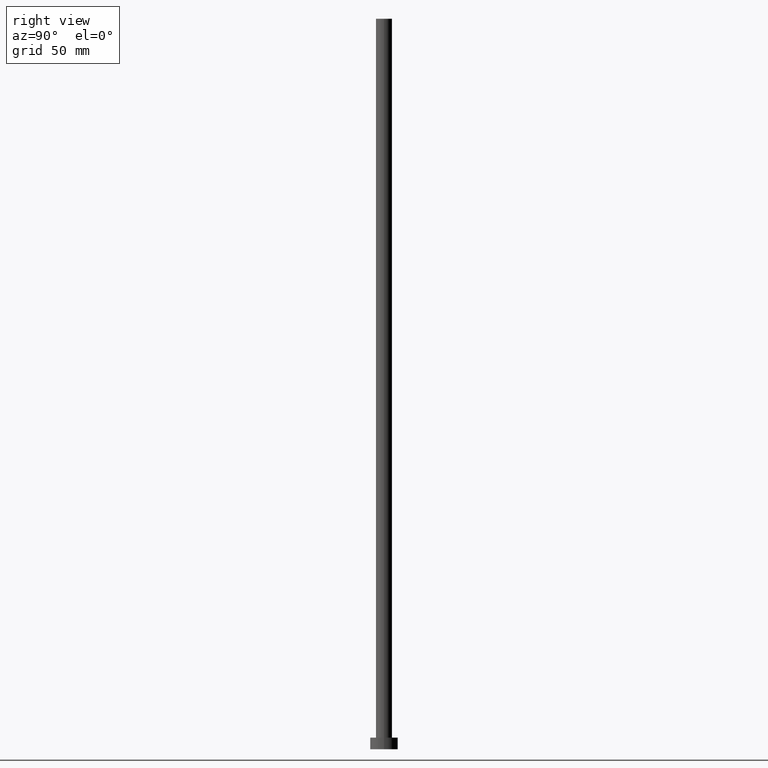
[diagram: clean part render]
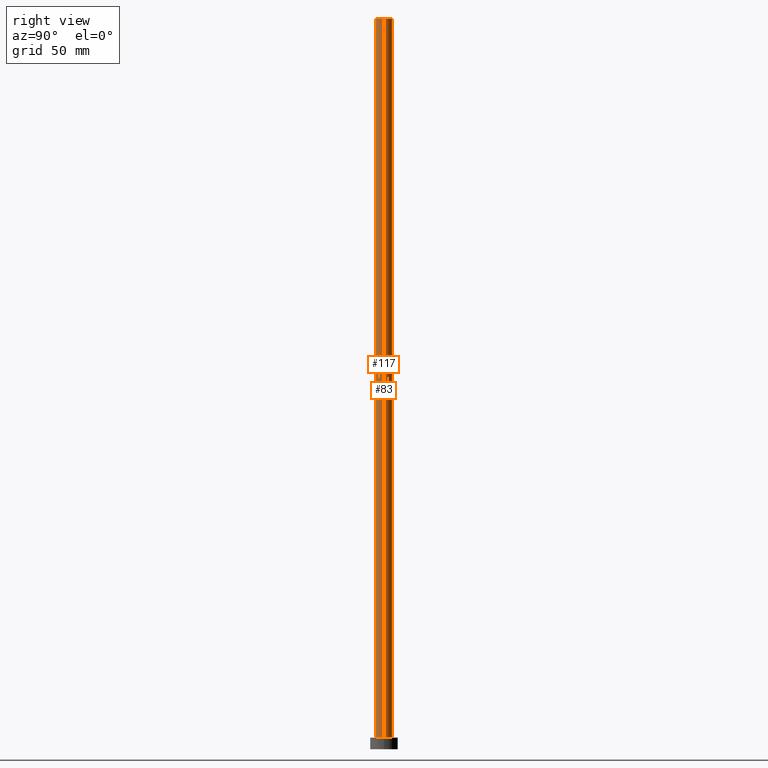
[diagram: same view with one multi-face feature highlighted, each face labeled with its STEP entity id]
A machine part, right view. The highlighted faces form ONE feature: a constant-radius fillet chain: 2 tangent blend faces with common blend radius 3.5 mm. The faces share edges in the B-rep.
Their STEP definitions:
[1] entity #83 (Cylinder):
#1 = EDGE_CURVE ( 'NONE', #251, #157, #139, .T. ) ;
#6 = CARTESIAN_POINT ( 'NONE',  ( 0.000000000000000000, 0.000000000000000000, 315.0000000000000000 ) ) ;
#14 = CARTESIAN_POINT ( 'NONE',  ( 3.500000000000000000, 4.286263797015736595E-16, 315.0000000000000000 ) ) ;
#15 = CARTESIAN_POINT ( 'NONE',  ( -3.500000000000000000, 0.000000000000000000, 315.0000000000000000 ) ) ;
#16 = EDGE_CURVE ( 'NONE', #173, #39, #75, .T. ) ;
#21 = FACE_OUTER_BOUND ( 'NONE', #55, .T. ) ;
#23 = CIRCLE ( 'NONE', #31, 3.500000000000000000 ) ;
#31 = AXIS2_PLACEMENT_3D ( 'NONE', #164, #221, #59 ) ;
#39 = VERTEX_POINT ( 'NONE', #118 ) ;
#40 = DIRECTION ( 'NONE',  ( -0.000000000000000000, -0.000000000000000000, -1.000000000000000000 ) ) ;
#55 = EDGE_LOOP ( 'NONE', ( #76, #250, #191, #140 ) ) ;
#59 = DIRECTION ( 'NONE',  ( 1.000000000000000000, 0.000000000000000000, 0.000000000000000000 ) ) ;
#68 = VECTOR ( 'NONE', #181, 1000.000000000000000 ) ;
#75 = LINE ( 'NONE', #14, #68 ) ;
#76 = ORIENTED_EDGE ( 'NONE', *, *, #124, .F. ) ;
#79 = DIRECTION ( 'NONE',  ( -1.000000000000000000, 0.000000000000000000, 0.000000000000000000 ) ) ;
#83 = ADVANCED_FACE ( 'NONE', ( #21 ), #109, .T. ) ;
#84 = CARTESIAN_POINT ( 'NONE',  ( 3.500000000000000000, 4.286263797015736595E-16, 315.0000000000000000 ) ) ;
#92 = AXIS2_PLACEMENT_3D ( 'NONE', #6, #149, #100 ) ;
#100 = DIRECTION ( 'NONE',  ( 1.000000000000000000, 0.000000000000000000, 0.000000000000000000 ) ) ;
#106 = CARTESIAN_POINT ( 'NONE',  ( -3.500000000000000000, 0.000000000000000000, 315.0000000000000000 ) ) ;
#109 = CYLINDRICAL_SURFACE ( 'NONE', #177, 3.500000000000000000 ) ;
#118 = CARTESIAN_POINT ( 'NONE',  ( 3.500000000000000000, 4.286263797015736595E-16, 5.000000000000000000 ) ) ;
#123 = DIRECTION ( 'NONE',  ( -0.000000000000000000, -0.000000000000000000, -1.000000000000000000 ) ) ;
#124 = EDGE_CURVE ( 'NONE', #173, #251, #247, .T. ) ;
#139 = LINE ( 'NONE', #15, #238 ) ;
#140 = ORIENTED_EDGE ( 'NONE', *, *, #1, .F. ) ;
#149 = DIRECTION ( 'NONE',  ( 0.000000000000000000, 0.000000000000000000, 1.000000000000000000 ) ) ;
#155 = EDGE_CURVE ( 'NONE', #39, #157, #23, .T. ) ;
#157 = VERTEX_POINT ( 'NONE', #199 ) ;
#164 = CARTESIAN_POINT ( 'NONE',  ( 0.000000000000000000, 0.000000000000000000, 5.000000000000000000 ) ) ;
#173 = VERTEX_POINT ( 'NONE', #84 ) ;
#177 = AXIS2_PLACEMENT_3D ( 'NONE', #202, #40, #79 ) ;
#181 = DIRECTION ( 'NONE',  ( -0.000000000000000000, -0.000000000000000000, -1.000000000000000000 ) ) ;
#191 = ORIENTED_EDGE ( 'NONE', *, *, #155, .T. ) ;
#199 = CARTESIAN_POINT ( 'NONE',  ( -3.500000000000000000, 0.000000000000000000, 5.000000000000000000 ) ) ;
#202 = CARTESIAN_POINT ( 'NONE',  ( 0.000000000000000000, 0.000000000000000000, 315.0000000000000000 ) ) ;
#221 = DIRECTION ( 'NONE',  ( 0.000000000000000000, 0.000000000000000000, 1.000000000000000000 ) ) ;
#238 = VECTOR ( 'NONE', #123, 1000.000000000000000 ) ;
#247 = CIRCLE ( 'NONE', #92, 3.500000000000000000 ) ;
#250 = ORIENTED_EDGE ( 'NONE', *, *, #16, .T. ) ;
#251 = VERTEX_POINT ( 'NONE', #106 ) ;
[2] entity #117 (Cylinder):
#1 = EDGE_CURVE ( 'NONE', #251, #157, #139, .T. ) ;
#10 = ORIENTED_EDGE ( 'NONE', *, *, #74, .F. ) ;
#14 = CARTESIAN_POINT ( 'NONE',  ( 3.500000000000000000, 4.286263797015736595E-16, 315.0000000000000000 ) ) ;
#15 = CARTESIAN_POINT ( 'NONE',  ( -3.500000000000000000, 0.000000000000000000, 315.0000000000000000 ) ) ;
#16 = EDGE_CURVE ( 'NONE', #173, #39, #75, .T. ) ;
#33 = ORIENTED_EDGE ( 'NONE', *, *, #16, .F. ) ;
#35 = CARTESIAN_POINT ( 'NONE',  ( 0.000000000000000000, 0.000000000000000000, 315.0000000000000000 ) ) ;
#39 = VERTEX_POINT ( 'NONE', #118 ) ;
#45 = DIRECTION ( 'NONE',  ( 0.000000000000000000, 0.000000000000000000, 1.000000000000000000 ) ) ;
#49 = AXIS2_PLACEMENT_3D ( 'NONE', #128, #185, #63 ) ;
#62 = AXIS2_PLACEMENT_3D ( 'NONE', #78, #45, #65 ) ;
#63 = DIRECTION ( 'NONE',  ( -1.000000000000000000, 0.000000000000000000, 0.000000000000000000 ) ) ;
#65 = DIRECTION ( 'NONE',  ( 1.000000000000000000, 0.000000000000000000, 0.000000000000000000 ) ) ;
#68 = VECTOR ( 'NONE', #181, 1000.000000000000000 ) ;
#74 = EDGE_CURVE ( 'NONE', #251, #173, #230, .T. ) ;
#75 = LINE ( 'NONE', #14, #68 ) ;
#78 = CARTESIAN_POINT ( 'NONE',  ( 0.000000000000000000, 0.000000000000000000, 5.000000000000000000 ) ) ;
#84 = CARTESIAN_POINT ( 'NONE',  ( 3.500000000000000000, 4.286263797015736595E-16, 315.0000000000000000 ) ) ;
#105 = FACE_OUTER_BOUND ( 'NONE', #115, .T. ) ;
#106 = CARTESIAN_POINT ( 'NONE',  ( -3.500000000000000000, 0.000000000000000000, 315.0000000000000000 ) ) ;
#108 = EDGE_CURVE ( 'NONE', #157, #39, #218, .T. ) ;
#115 = EDGE_LOOP ( 'NONE', ( #33, #10, #198, #120 ) ) ;
#117 = ADVANCED_FACE ( 'NONE', ( #105 ), #219, .T. ) ;
#118 = CARTESIAN_POINT ( 'NONE',  ( 3.500000000000000000, 4.286263797015736595E-16, 5.000000000000000000 ) ) ;
#119 = DIRECTION ( 'NONE',  ( 1.000000000000000000, 0.000000000000000000, 0.000000000000000000 ) ) ;
#120 = ORIENTED_EDGE ( 'NONE', *, *, #108, .T. ) ;
#123 = DIRECTION ( 'NONE',  ( -0.000000000000000000, -0.000000000000000000, -1.000000000000000000 ) ) ;
#125 = AXIS2_PLACEMENT_3D ( 'NONE', #35, #216, #119 ) ;
#128 = CARTESIAN_POINT ( 'NONE',  ( 0.000000000000000000, 0.000000000000000000, 315.0000000000000000 ) ) ;
#139 = LINE ( 'NONE', #15, #238 ) ;
#157 = VERTEX_POINT ( 'NONE', #199 ) ;
#173 = VERTEX_POINT ( 'NONE', #84 ) ;
#181 = DIRECTION ( 'NONE',  ( -0.000000000000000000, -0.000000000000000000, -1.000000000000000000 ) ) ;
#185 = DIRECTION ( 'NONE',  ( -0.000000000000000000, -0.000000000000000000, -1.000000000000000000 ) ) ;
#198 = ORIENTED_EDGE ( 'NONE', *, *, #1, .T. ) ;
#199 = CARTESIAN_POINT ( 'NONE',  ( -3.500000000000000000, 0.000000000000000000, 5.000000000000000000 ) ) ;
#216 = DIRECTION ( 'NONE',  ( 0.000000000000000000, 0.000000000000000000, 1.000000000000000000 ) ) ;
#218 = CIRCLE ( 'NONE', #62, 3.500000000000000000 ) ;
#219 = CYLINDRICAL_SURFACE ( 'NONE', #49, 3.500000000000000000 ) ;
#230 = CIRCLE ( 'NONE', #125, 3.500000000000000000 ) ;
#238 = VECTOR ( 'NONE', #123, 1000.000000000000000 ) ;
#251 = VERTEX_POINT ( 'NONE', #106 ) ;